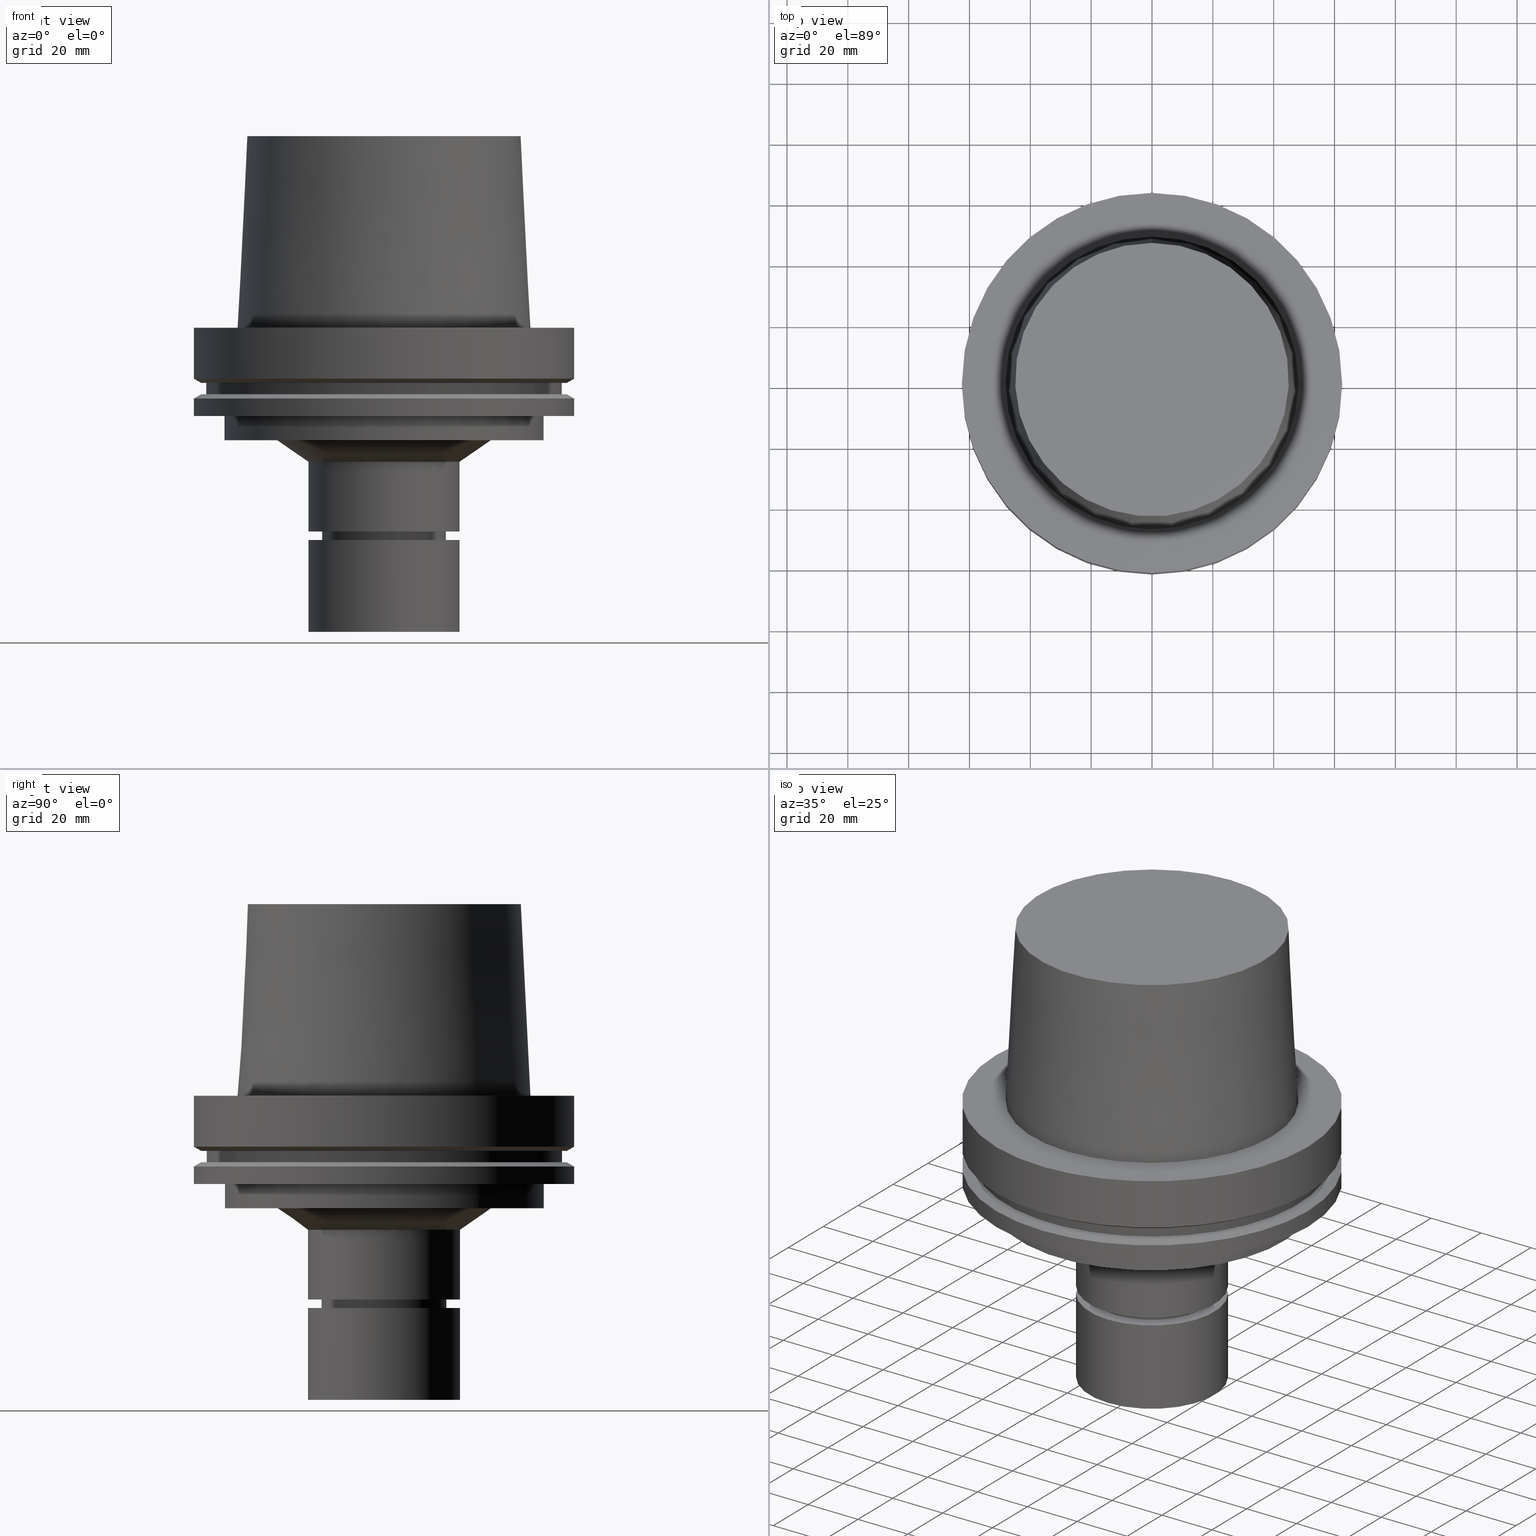
[diagram: canonical four-view strip — front | top / right | iso, engineering-drawing reading convention]
A machine part, canonical four-view strip (front | top / right | iso — engineering-drawing reading convention). The complete STEP part file that produces these views, byte-faithful:
ISO-10303-21;
HEADER;
FILE_DESCRIPTION((''),'1');
FILE_NAME('U:/Translate/02_3D_Field-HP\X2\FF71FF6FFF8CFF9F5916\X0\2013/02_Step_Field-HP\X2\FF71FF6FFF8CFF9F5916\X0\2013/HSK-A125-MEGAER32-100NL.stp','2016-06-22T04:39:14',(''),(''),'Spatial Interop R21 SP3','Kubotek KeyCreator 2011 V10.0.2 (22737)',' ');
FILE_SCHEMA(('automotive_design'));
ENDSEC;
DATA;
#1=MECHANICAL_DESIGN_GEOMETRIC_PRESENTATION_REPRESENTATION(' ',(#14,#15,#16,#17,#18,#19,#20,#21,#22,#23,#24,#25,#26,#27,#28,#29,#30,#31,#32,#33,#34,#35,#36,#37,#38,#39,#40,#41,#42,#43,#44,#45,#46,#47,#48,#49,#50,#51,#52,#53,#54,#55,#56,#57,#58,#59,#60,#61),#10);
#2=PRODUCT_DEFINITION_CONTEXT('',#62,'design');
#3=APPLICATION_PROTOCOL_DEFINITION('INTERNATIONAL STANDARD','automotive_design',1994,#62);
#4=PRODUCT_CATEGORY_RELATIONSHIP('NONE','NONE',#63,#64);
#5=SHAPE_DEFINITION_REPRESENTATION(#65,#66);
#6=PRODUCT_DEFINITION_CONTEXT('',#67,'design');
#7=APPLICATION_PROTOCOL_DEFINITION('INTERNATIONAL STANDARD','automotive_design',1994,#67);
#8=PRODUCT_CATEGORY_RELATIONSHIP('NONE','NONE',#68,#69);
#9=SHAPE_DEFINITION_REPRESENTATION(#70,#71);
#10= (GEOMETRIC_REPRESENTATION_CONTEXT(3)GLOBAL_UNCERTAINTY_ASSIGNED_CONTEXT((#74))GLOBAL_UNIT_ASSIGNED_CONTEXT((#76,#77,#78))REPRESENTATION_CONTEXT('NONE','WORKSPACE'));
#14=STYLED_ITEM('',(#80,#81),#82);
#15=STYLED_ITEM('',(#83,#84),#85);
#16=STYLED_ITEM('',(#86),#87);
#17=STYLED_ITEM('',(#88,#89),#90);
#18=STYLED_ITEM('',(#91),#92);
#19=STYLED_ITEM('',(#93),#94);
#20=STYLED_ITEM('',(#95),#96);
#21=STYLED_ITEM('',(#97,#98),#99);
#22=STYLED_ITEM('',(#100),#101);
#23=STYLED_ITEM('',(#102,#103),#104);
#24=STYLED_ITEM('',(#105,#106),#107);
#25=STYLED_ITEM('',(#108),#109);
#26=STYLED_ITEM('',(#110,#111),#112);
#27=STYLED_ITEM('',(#113,#114),#115);
#28=STYLED_ITEM('',(#116,#117),#118);
#29=STYLED_ITEM('',(#119,#120),#121);
#30=STYLED_ITEM('',(#122),#123);
#31=STYLED_ITEM('',(#124,#125),#126);
#32=STYLED_ITEM('',(#127,#128),#129);
#33=STYLED_ITEM('',(#130,#131),#132);
#34=STYLED_ITEM('',(#133,#134),#135);
#35=STYLED_ITEM('',(#136,#137),#138);
#36=STYLED_ITEM('',(#139),#140);
#37=STYLED_ITEM('',(#141),#142);
#38=STYLED_ITEM('',(#143,#144),#145);
#39=STYLED_ITEM('',(#146,#147),#148);
#40=STYLED_ITEM('',(#149,#150),#151);
#41=STYLED_ITEM('',(#152),#153);
#42=STYLED_ITEM('',(#154,#155),#156);
#43=STYLED_ITEM('',(#157),#158);
#44=STYLED_ITEM('',(#159),#160);
#45=STYLED_ITEM('',(#161,#162),#163);
#46=STYLED_ITEM('',(#164,#165),#166);
#47=STYLED_ITEM('',(#167),#168);
#48=STYLED_ITEM('',(#169,#170),#171);
#49=STYLED_ITEM('',(#172,#173),#174);
#50=STYLED_ITEM('',(#175),#176);
#51=STYLED_ITEM('',(#177),#178);
#52=STYLED_ITEM('',(#179,#180),#181);
#53=STYLED_ITEM('',(#182,#183),#184);
#54=STYLED_ITEM('',(#185),#186);
#55=STYLED_ITEM('',(#187),#188);
#56=STYLED_ITEM('',(#189),#190);
#57=STYLED_ITEM('',(#191),#192);
#58=STYLED_ITEM('',(#193),#194);
#59=STYLED_ITEM('',(#195,#196),#197);
#60=STYLED_ITEM('',(#198),#199);
#61=STYLED_ITEM('',(#200),#201);
#62=APPLICATION_CONTEXT(' ');
#63=PRODUCT_CATEGORY('part','NONE');
#64=PRODUCT_RELATED_PRODUCT_CATEGORY('detail',' ',(#202));
#65=PRODUCT_DEFINITION_SHAPE('NONE','NONE',#203);
#66=ADVANCED_BREP_SHAPE_REPRESENTATION('Unnamed[1]',(#82,#204),#10);
#67=APPLICATION_CONTEXT(' ');
#68=PRODUCT_CATEGORY('part','NONE');
#69=PRODUCT_RELATED_PRODUCT_CATEGORY('detail',' ',(#205));
#70=PRODUCT_DEFINITION_SHAPE('NONE','NONE',#206);
#71=ADVANCED_BREP_SHAPE_REPRESENTATION('Unnamed[1]',(#85,#207),#10);
#74=UNCERTAINTY_MEASURE_WITH_UNIT(LENGTH_MEASURE(1.0E-006),#76,'','');
#76= (CONVERSION_BASED_UNIT('MILLIMETRE',#210)LENGTH_UNIT()NAMED_UNIT(#213));
#77= (NAMED_UNIT(#215)PLANE_ANGLE_UNIT()SI_UNIT($,.RADIAN.));
#78= (NAMED_UNIT(#215)SOLID_ANGLE_UNIT()SI_UNIT($,.STERADIAN.));
#80=PRESENTATION_STYLE_ASSIGNMENT((#221));
#81=PRESENTATION_STYLE_ASSIGNMENT((#222));
#82=MANIFOLD_SOLID_BREP('Unnamed[1]',#223);
#83=PRESENTATION_STYLE_ASSIGNMENT((#224));
#84=PRESENTATION_STYLE_ASSIGNMENT((#225));
#85=MANIFOLD_SOLID_BREP('Unnamed[1]',#226);
#86=PRESENTATION_STYLE_ASSIGNMENT((#227));
#87=EDGE_CURVE('Unnamed[1]',#228,#228,#229,.T.);
#88=PRESENTATION_STYLE_ASSIGNMENT((#230));
#89=PRESENTATION_STYLE_ASSIGNMENT((#231));
#90=ADVANCED_FACE('Unnamed[1]',(#232,#233),#234,.T.);
#91=PRESENTATION_STYLE_ASSIGNMENT((#235));
#92=EDGE_CURVE('Unnamed[1]',#236,#236,#237,.T.);
#93=PRESENTATION_STYLE_ASSIGNMENT((#238));
#94=EDGE_CURVE('Unnamed[1]',#239,#239,#240,.T.);
#95=PRESENTATION_STYLE_ASSIGNMENT((#241));
#96=EDGE_CURVE('Unnamed[1]',#242,#242,#243,.T.);
#97=PRESENTATION_STYLE_ASSIGNMENT((#244));
#98=PRESENTATION_STYLE_ASSIGNMENT((#245));
#99=ADVANCED_FACE('Unnamed[1]',(#246,#247),#248,.T.);
#100=PRESENTATION_STYLE_ASSIGNMENT((#249));
#101=EDGE_CURVE('Unnamed[1]',#250,#250,#251,.T.);
#102=PRESENTATION_STYLE_ASSIGNMENT((#252));
#103=PRESENTATION_STYLE_ASSIGNMENT((#253));
#104=ADVANCED_FACE('Unnamed[1]',(#254),#255,.T.);
#105=PRESENTATION_STYLE_ASSIGNMENT((#256));
#106=PRESENTATION_STYLE_ASSIGNMENT((#257));
#107=ADVANCED_FACE('Unnamed[1]',(#258,#259),#260,.T.);
#108=PRESENTATION_STYLE_ASSIGNMENT((#261));
#109=EDGE_CURVE('Unnamed[1]',#262,#262,#263,.T.);
#110=PRESENTATION_STYLE_ASSIGNMENT((#264));
#111=PRESENTATION_STYLE_ASSIGNMENT((#265));
#112=ADVANCED_FACE('Unnamed[1]',(#266,#267),#268,.T.);
#113=PRESENTATION_STYLE_ASSIGNMENT((#269));
#114=PRESENTATION_STYLE_ASSIGNMENT((#270));
#115=ADVANCED_FACE('Unnamed[1]',(#271,#272),#273,.T.);
#116=PRESENTATION_STYLE_ASSIGNMENT((#274));
#117=PRESENTATION_STYLE_ASSIGNMENT((#275));
#118=ADVANCED_FACE('Unnamed[1]',(#276,#277),#278,.T.);
#119=PRESENTATION_STYLE_ASSIGNMENT((#279));
#120=PRESENTATION_STYLE_ASSIGNMENT((#280));
#121=ADVANCED_FACE('Unnamed[1]',(#281,#282),#283,.T.);
#122=PRESENTATION_STYLE_ASSIGNMENT((#284));
#123=EDGE_CURVE('Unnamed[1]',#285,#285,#286,.T.);
#124=PRESENTATION_STYLE_ASSIGNMENT((#287));
#125=PRESENTATION_STYLE_ASSIGNMENT((#288));
#126=ADVANCED_FACE('Unnamed[1]',(#289,#290),#291,.T.);
#127=PRESENTATION_STYLE_ASSIGNMENT((#292));
#128=PRESENTATION_STYLE_ASSIGNMENT((#293));
#129=ADVANCED_FACE('Unnamed[1]',(#294),#295,.T.);
#130=PRESENTATION_STYLE_ASSIGNMENT((#296));
#131=PRESENTATION_STYLE_ASSIGNMENT((#297));
#132=ADVANCED_FACE('Unnamed[1]',(#298,#299),#300,.T.);
#133=PRESENTATION_STYLE_ASSIGNMENT((#301));
#134=PRESENTATION_STYLE_ASSIGNMENT((#302));
#135=ADVANCED_FACE('Unnamed[1]',(#303,#304),#305,.T.);
#136=PRESENTATION_STYLE_ASSIGNMENT((#306));
#137=PRESENTATION_STYLE_ASSIGNMENT((#307));
#138=ADVANCED_FACE('Unnamed[1]',(#308),#309,.T.);
#139=PRESENTATION_STYLE_ASSIGNMENT((#310));
#140=EDGE_CURVE('Unnamed[1]',#311,#311,#312,.T.);
#141=PRESENTATION_STYLE_ASSIGNMENT((#313));
#142=EDGE_CURVE('Unnamed[1]',#314,#314,#315,.T.);
#143=PRESENTATION_STYLE_ASSIGNMENT((#316));
#144=PRESENTATION_STYLE_ASSIGNMENT((#317));
#145=ADVANCED_FACE('Unnamed[1]',(#318),#319,.T.);
#146=PRESENTATION_STYLE_ASSIGNMENT((#320));
#147=PRESENTATION_STYLE_ASSIGNMENT((#321));
#148=ADVANCED_FACE('Unnamed[1]',(#322,#323),#324,.T.);
#149=PRESENTATION_STYLE_ASSIGNMENT((#325));
#150=PRESENTATION_STYLE_ASSIGNMENT((#326));
#151=ADVANCED_FACE('Unnamed[1]',(#327,#328),#329,.T.);
#152=PRESENTATION_STYLE_ASSIGNMENT((#330));
#153=EDGE_CURVE('Unnamed[1]',#331,#331,#332,.T.);
#154=PRESENTATION_STYLE_ASSIGNMENT((#333));
#155=PRESENTATION_STYLE_ASSIGNMENT((#334));
#156=ADVANCED_FACE('Unnamed[1]',(#335,#336),#337,.T.);
#157=PRESENTATION_STYLE_ASSIGNMENT((#338));
#158=EDGE_CURVE('Unnamed[1]',#339,#339,#340,.T.);
#159=PRESENTATION_STYLE_ASSIGNMENT((#341));
#160=EDGE_CURVE('Unnamed[1]',#342,#342,#343,.T.);
#161=PRESENTATION_STYLE_ASSIGNMENT((#344));
#162=PRESENTATION_STYLE_ASSIGNMENT((#345));
#163=ADVANCED_FACE('Unnamed[1]',(#346,#347),#348,.T.);
#164=PRESENTATION_STYLE_ASSIGNMENT((#349));
#165=PRESENTATION_STYLE_ASSIGNMENT((#350));
#166=ADVANCED_FACE('Unnamed[1]',(#351,#352),#353,.T.);
#167=PRESENTATION_STYLE_ASSIGNMENT((#354));
#168=EDGE_CURVE('Unnamed[1]',#355,#355,#356,.T.);
#169=PRESENTATION_STYLE_ASSIGNMENT((#357));
#170=PRESENTATION_STYLE_ASSIGNMENT((#358));
#171=ADVANCED_FACE('Unnamed[1]',(#359,#360),#361,.T.);
#172=PRESENTATION_STYLE_ASSIGNMENT((#362));
#173=PRESENTATION_STYLE_ASSIGNMENT((#363));
#174=ADVANCED_FACE('Unnamed[1]',(#364,#365),#366,.T.);
#175=PRESENTATION_STYLE_ASSIGNMENT((#367));
#176=EDGE_CURVE('Unnamed[1]',#368,#368,#369,.T.);
#177=PRESENTATION_STYLE_ASSIGNMENT((#370));
#178=EDGE_CURVE('Unnamed[1]',#371,#371,#372,.T.);
#179=PRESENTATION_STYLE_ASSIGNMENT((#373));
#180=PRESENTATION_STYLE_ASSIGNMENT((#374));
#181=ADVANCED_FACE('Unnamed[1]',(#375,#376),#377,.T.);
#182=PRESENTATION_STYLE_ASSIGNMENT((#378));
#183=PRESENTATION_STYLE_ASSIGNMENT((#379));
#184=ADVANCED_FACE('Unnamed[1]',(#380,#381),#382,.T.);
#185=PRESENTATION_STYLE_ASSIGNMENT((#383));
#186=EDGE_CURVE('Unnamed[1]',#384,#384,#385,.T.);
#187=PRESENTATION_STYLE_ASSIGNMENT((#386));
#188=EDGE_CURVE('Unnamed[1]',#387,#387,#388,.T.);
#189=PRESENTATION_STYLE_ASSIGNMENT((#389));
#190=EDGE_CURVE('Unnamed[1]',#390,#390,#391,.T.);
#191=PRESENTATION_STYLE_ASSIGNMENT((#392));
#192=EDGE_CURVE('Unnamed[1]',#393,#393,#394,.T.);
#193=PRESENTATION_STYLE_ASSIGNMENT((#395));
#194=EDGE_CURVE('Unnamed[1]',#396,#396,#397,.T.);
#195=PRESENTATION_STYLE_ASSIGNMENT((#398));
#196=PRESENTATION_STYLE_ASSIGNMENT((#399));
#197=ADVANCED_FACE('Unnamed[1]',(#400,#401),#402,.T.);
#198=PRESENTATION_STYLE_ASSIGNMENT((#403));
#199=EDGE_CURVE('Unnamed[1]',#404,#404,#405,.T.);
#200=PRESENTATION_STYLE_ASSIGNMENT((#406));
#201=EDGE_CURVE('Unnamed[1]',#407,#407,#408,.T.);
#202=PRODUCT('Unnamed[1]','Unnamed[1]','PART-Unnamed[1]-DESC',(#409));
#203=PRODUCT_DEFINITION('NONE','NONE',#410,#2);
#204=AXIS2_PLACEMENT_3D('',#411,#412,#413);
#205=PRODUCT('Unnamed[1]','Unnamed[1]','PART-Unnamed[1]-DESC',(#414));
#206=PRODUCT_DEFINITION('NONE','NONE',#415,#6);
#207=AXIS2_PLACEMENT_3D('',#416,#417,#418);
#210=LENGTH_MEASURE_WITH_UNIT(LENGTH_MEASURE(1.0),#419);
#213=DIMENSIONAL_EXPONENTS(1.0,0.0,0.0,0.0,0.0,0.0,0.0);
#215=DIMENSIONAL_EXPONENTS(0.0,0.0,0.0,0.0,0.0,0.0,0.0);
#221=SURFACE_STYLE_USAGE(.BOTH.,#420);
#222=CURVE_STYLE('',#421,POSITIVE_LENGTH_MEASURE(1000.0),#422);
#223=CLOSED_SHELL('',(#129,#132,#135,#126,#184,#171,#118,#148,#151,#99,#197,#115,#90,#174,#107,#112,#121,#156,#163,#166,#138));
#224=SURFACE_STYLE_USAGE(.BOTH.,#423);
#225=CURVE_STYLE('',#424,POSITIVE_LENGTH_MEASURE(1000.0),#425);
#226=CLOSED_SHELL('',(#145,#104,#181));
#227=CURVE_STYLE('',#426,POSITIVE_LENGTH_MEASURE(1000.0),#427);
#228=VERTEX_POINT('',#428);
#229=CIRCLE('',#429,44.977939879759);
#230=SURFACE_STYLE_USAGE(.BOTH.,#430);
#231=CURVE_STYLE('',#431,POSITIVE_LENGTH_MEASURE(1000.0),#432);
#232=FACE_BOUND('',#433,.T.);
#233=FACE_OUTER_BOUND('',#434,.T.);
#234=PLANE('',#435);
#235=CURVE_STYLE('',#436,POSITIVE_LENGTH_MEASURE(1000.0),#437);
#236=VERTEX_POINT('',#438);
#237=CIRCLE('',#439,20.0000000000001);
#238=CURVE_STYLE('',#440,POSITIVE_LENGTH_MEASURE(1000.0),#441);
#239=VERTEX_POINT('',#442);
#240=CIRCLE('',#443,62.5000000000003);
#241=CURVE_STYLE('',#444,POSITIVE_LENGTH_MEASURE(1000.0),#445);
#242=VERTEX_POINT('',#446);
#243=CIRCLE('',#447,20.4999999999912);
#244=SURFACE_STYLE_USAGE(.BOTH.,#448);
#245=CURVE_STYLE('',#449,POSITIVE_LENGTH_MEASURE(1000.0),#450);
#246=FACE_BOUND('',#451,.T.);
#247=FACE_BOUND('',#452,.T.);
#248=CYLINDRICAL_SURFACE('',#453,62.5);
#249=CURVE_STYLE('',#454,POSITIVE_LENGTH_MEASURE(1000.0),#455);
#250=VERTEX_POINT('',#456);
#251=CIRCLE('',#457,60.122595264194);
#252=SURFACE_STYLE_USAGE(.BOTH.,#458);
#253=CURVE_STYLE('',#459,POSITIVE_LENGTH_MEASURE(1000.0),#460);
#254=FACE_OUTER_BOUND('',#461,.T.);
#255=PLANE('',#462);
#256=SURFACE_STYLE_USAGE(.BOTH.,#463);
#257=CURVE_STYLE('',#464,POSITIVE_LENGTH_MEASURE(1000.0),#465);
#258=FACE_BOUND('',#466,.T.);
#259=FACE_BOUND('',#467,.T.);
#260=CYLINDRICAL_SURFACE('',#468,24.9999999999999);
#261=CURVE_STYLE('',#469,POSITIVE_LENGTH_MEASURE(1000.0),#470);
#262=VERTEX_POINT('',#471);
#263=CIRCLE('',#472,25.0000000000001);
#264=SURFACE_STYLE_USAGE(.BOTH.,#473);
#265=CURVE_STYLE('',#474,POSITIVE_LENGTH_MEASURE(1000.0),#475);
#266=FACE_BOUND('',#476,.T.);
#267=FACE_OUTER_BOUND('',#477,.T.);
#268=PLANE('',#478);
#269=SURFACE_STYLE_USAGE(.BOTH.,#479);
#270=CURVE_STYLE('',#480,POSITIVE_LENGTH_MEASURE(1000.0),#481);
#271=FACE_BOUND('',#482,.T.);
#272=FACE_BOUND('',#483,.T.);
#273=CYLINDRICAL_SURFACE('',#484,52.5);
#274=SURFACE_STYLE_USAGE(.BOTH.,#485);
#275=CURVE_STYLE('',#486,POSITIVE_LENGTH_MEASURE(1000.0),#487);
#276=FACE_BOUND('',#488,.T.);
#277=FACE_BOUND('',#489,.T.);
#278=CYLINDRICAL_SURFACE('',#490,58.5);
#279=SURFACE_STYLE_USAGE(.BOTH.,#491);
#280=CURVE_STYLE('',#492,POSITIVE_LENGTH_MEASURE(1000.0),#493);
#281=FACE_BOUND('',#494,.T.);
#282=FACE_BOUND('',#495,.T.);
#283=CYLINDRICAL_SURFACE('',#496,20.4999999999962);
#284=CURVE_STYLE('',#497,POSITIVE_LENGTH_MEASURE(1000.0),#498);
#285=VERTEX_POINT('',#499);
#286=CIRCLE('',#500,52.4999999999999);
#287=SURFACE_STYLE_USAGE(.BOTH.,#501);
#288=CURVE_STYLE('',#502,POSITIVE_LENGTH_MEASURE(1000.0),#503);
#289=FACE_BOUND('',#504,.T.);
#290=FACE_BOUND('',#505,.T.);
#291=CYLINDRICAL_SURFACE('',#506,62.5000000000002);
#292=SURFACE_STYLE_USAGE(.BOTH.,#507);
#293=CURVE_STYLE('',#508,POSITIVE_LENGTH_MEASURE(1000.0),#509);
#294=FACE_OUTER_BOUND('',#510,.T.);
#295=PLANE('',#511);
#296=SURFACE_STYLE_USAGE(.BOTH.,#512);
#297=CURVE_STYLE('',#513,POSITIVE_LENGTH_MEASURE(1000.0),#514);
#298=FACE_BOUND('',#515,.T.);
#299=FACE_BOUND('',#516,.T.);
#300=CONICAL_SURFACE('',#517,46.5560961923844,0.0500583457465986);
#301=SURFACE_STYLE_USAGE(.BOTH.,#518);
#302=CURVE_STYLE('',#519,POSITIVE_LENGTH_MEASURE(1000.0),#520);
#303=FACE_OUTER_BOUND('',#521,.T.);
#304=FACE_BOUND('',#522,.T.);
#305=PLANE('',#523);
#306=SURFACE_STYLE_USAGE(.BOTH.,#524);
#307=CURVE_STYLE('',#525,POSITIVE_LENGTH_MEASURE(1000.0),#526);
#308=FACE_OUTER_BOUND('',#527,.T.);
#309=PLANE('',#528);
#310=CURVE_STYLE('',#529,POSITIVE_LENGTH_MEASURE(1000.0),#530);
#311=VERTEX_POINT('',#531);
#312=CIRCLE('',#532,52.5000000000001);
#313=CURVE_STYLE('',#533,POSITIVE_LENGTH_MEASURE(1000.0),#534);
#314=VERTEX_POINT('',#535);
#315=CIRCLE('',#536,62.5);
#316=SURFACE_STYLE_USAGE(.BOTH.,#537);
#317=CURVE_STYLE('',#538,POSITIVE_LENGTH_MEASURE(1000.0),#539);
#318=FACE_OUTER_BOUND('',#540,.T.);
#319=PLANE('',#541);
#320=SURFACE_STYLE_USAGE(.BOTH.,#542);
#321=CURVE_STYLE('',#543,POSITIVE_LENGTH_MEASURE(1000.0),#544);
#322=FACE_OUTER_BOUND('',#545,.T.);
#323=FACE_BOUND('',#546,.T.);
#324=PLANE('',#547);
#325=SURFACE_STYLE_USAGE(.BOTH.,#548);
#326=CURVE_STYLE('',#549,POSITIVE_LENGTH_MEASURE(1000.0),#550);
#327=FACE_BOUND('',#551,.T.);
#328=FACE_BOUND('',#552,.T.);
#329=CONICAL_SURFACE('',#553,61.311297632097,1.04719755119646);
#330=CURVE_STYLE('',#554,POSITIVE_LENGTH_MEASURE(1000.0),#555);
#331=VERTEX_POINT('',#556);
#332=CIRCLE('',#557,48.1342525050098);
#333=SURFACE_STYLE_USAGE(.BOTH.,#558);
#334=CURVE_STYLE('',#559,POSITIVE_LENGTH_MEASURE(1000.0),#560);
#335=FACE_BOUND('',#561,.T.);
#336=FACE_BOUND('',#562,.T.);
#337=CONICAL_SURFACE('',#563,20.2500000000007,0.766162649695663);
#338=CURVE_STYLE('',#564,POSITIVE_LENGTH_MEASURE(1000.0),#565);
#339=VERTEX_POINT('',#566);
#340=CIRCLE('',#567,58.5000000000001);
#341=CURVE_STYLE('',#568,POSITIVE_LENGTH_MEASURE(1000.0),#569);
#342=VERTEX_POINT('',#570);
#343=CIRCLE('',#571,35.1435726714544);
#344=SURFACE_STYLE_USAGE(.BOTH.,#572);
#345=CURVE_STYLE('',#573,POSITIVE_LENGTH_MEASURE(1000.0),#574);
#346=FACE_BOUND('',#575,.T.);
#347=FACE_BOUND('',#576,.T.);
#348=CYLINDRICAL_SURFACE('',#577,20.0000000000001);
#349=SURFACE_STYLE_USAGE(.BOTH.,#578);
#350=CURVE_STYLE('',#579,POSITIVE_LENGTH_MEASURE(1000.0),#580);
#351=FACE_BOUND('',#581,.T.);
#352=FACE_BOUND('',#582,.T.);
#353=CONICAL_SURFACE('',#583,19.45,0.523598775598221);
#354=CURVE_STYLE('',#584,POSITIVE_LENGTH_MEASURE(1000.0),#585);
#355=VERTEX_POINT('',#586);
#356=CIRCLE('',#587,58.4999999999998);
#357=SURFACE_STYLE_USAGE(.BOTH.,#588);
#358=CURVE_STYLE('',#589,POSITIVE_LENGTH_MEASURE(1000.0),#590);
#359=FACE_BOUND('',#591,.T.);
#360=FACE_OUTER_BOUND('',#592,.T.);
#361=PLANE('',#593);
#362=SURFACE_STYLE_USAGE(.BOTH.,#594);
#363=CURVE_STYLE('',#595,POSITIVE_LENGTH_MEASURE(1000.0),#596);
#364=FACE_BOUND('',#597,.T.);
#365=FACE_BOUND('',#598,.T.);
#366=CONICAL_SURFACE('',#599,30.071786335727,0.962446965226447);
#367=CURVE_STYLE('',#600,POSITIVE_LENGTH_MEASURE(1000.0),#601);
#368=VERTEX_POINT('',#602);
#369=CIRCLE('',#603,24.9999999999996);
#370=CURVE_STYLE('',#604,POSITIVE_LENGTH_MEASURE(1000.0),#605);
#371=VERTEX_POINT('',#606);
#372=CIRCLE('',#607,20.5000000000013);
#373=SURFACE_STYLE_USAGE(.BOTH.,#608);
#374=CURVE_STYLE('',#609,POSITIVE_LENGTH_MEASURE(1000.0),#610);
#375=FACE_BOUND('',#611,.T.);
#376=FACE_BOUND('',#612,.T.);
#377=CYLINDRICAL_SURFACE('',#613,25.0000000000001);
#378=SURFACE_STYLE_USAGE(.BOTH.,#614);
#379=CURVE_STYLE('',#615,POSITIVE_LENGTH_MEASURE(1000.0),#616);
#380=FACE_BOUND('',#617,.T.);
#381=FACE_BOUND('',#618,.T.);
#382=CONICAL_SURFACE('',#619,61.3112976320956,1.04719755119668);
#383=CURVE_STYLE('',#620,POSITIVE_LENGTH_MEASURE(1000.0),#621);
#384=VERTEX_POINT('',#622);
#385=CIRCLE('',#623,62.5000000000001);
#386=CURVE_STYLE('',#624,POSITIVE_LENGTH_MEASURE(1000.0),#625);
#387=VERTEX_POINT('',#626);
#388=CIRCLE('',#627,20.0000000000002);
#389=CURVE_STYLE('',#628,POSITIVE_LENGTH_MEASURE(1000.0),#629);
#390=VERTEX_POINT('',#630);
#391=CIRCLE('',#631,18.8999999999998);
#392=CURVE_STYLE('',#632,POSITIVE_LENGTH_MEASURE(1000.0),#633);
#393=VERTEX_POINT('',#634);
#394=CIRCLE('',#635,25.0000000000001);
#395=CURVE_STYLE('',#636,POSITIVE_LENGTH_MEASURE(1000.0),#637);
#396=VERTEX_POINT('',#638);
#397=CIRCLE('',#639,62.5);
#398=SURFACE_STYLE_USAGE(.BOTH.,#640);
#399=CURVE_STYLE('',#641,POSITIVE_LENGTH_MEASURE(1000.0),#642);
#400=FACE_BOUND('',#643,.T.);
#401=FACE_OUTER_BOUND('',#644,.T.);
#402=PLANE('',#645);
#403=CURVE_STYLE('',#646,POSITIVE_LENGTH_MEASURE(1000.0),#647);
#404=VERTEX_POINT('',#648);
#405=CIRCLE('',#649,60.1225952641912);
#406=CURVE_STYLE('',#650,POSITIVE_LENGTH_MEASURE(1000.0),#651);
#407=VERTEX_POINT('',#652);
#408=CIRCLE('',#653,25.0000000000002);
#409=PRODUCT_CONTEXT('',#62,'mechanical');
#410=PRODUCT_DEFINITION_FORMATION_WITH_SPECIFIED_SOURCE(' ','NONE',#202,.NOT_KNOWN.);
#411=CARTESIAN_POINT('',(0.0,0.0,0.0));
#412=DIRECTION('',(0.0,0.0,1.0));
#413=DIRECTION('',(1.0,0.0,0.0));
#414=PRODUCT_CONTEXT('',#67,'mechanical');
#415=PRODUCT_DEFINITION_FORMATION_WITH_SPECIFIED_SOURCE(' ','NONE',#205,.NOT_KNOWN.);
#416=CARTESIAN_POINT('',(0.0,0.0,0.0));
#417=DIRECTION('',(0.0,0.0,1.0));
#418=DIRECTION('',(1.0,0.0,0.0));
#419= (NAMED_UNIT(#213)LENGTH_UNIT()SI_UNIT(.MILLI.,.METRE.));
#420=SURFACE_SIDE_STYLE('',(#655));
#421=DRAUGHTING_PRE_DEFINED_CURVE_FONT('continuous');
#422=COLOUR_RGB('',0.0,1.0,0.0);
#423=SURFACE_SIDE_STYLE('',(#656));
#424=DRAUGHTING_PRE_DEFINED_CURVE_FONT('continuous');
#425=COLOUR_RGB('',0.0,1.0,0.0);
#426=DRAUGHTING_PRE_DEFINED_CURVE_FONT('continuous');
#427=COLOUR_RGB('',0.0,1.0,0.0);
#428=CARTESIAN_POINT('',(-3.85763741731416E-015,44.9779398797591,62.9999999999999));
#429=AXIS2_PLACEMENT_3D('',#657,#658,#659);
#430=SURFACE_SIDE_STYLE('',(#660));
#431=DRAUGHTING_PRE_DEFINED_CURVE_FONT('continuous');
#432=COLOUR_RGB('',0.0,1.0,0.0);
#433=EDGE_LOOP('',(#661));
#434=EDGE_LOOP('',(#662));
#435=AXIS2_PLACEMENT_3D('',#663,#664,#665);
#436=DRAUGHTING_PRE_DEFINED_CURVE_FONT('continuous');
#437=COLOUR_RGB('',0.0,1.0,0.0);
#438=CARTESIAN_POINT('',(4.51472763839222E-015,20.0,-73.7310976770699));
#439=AXIS2_PLACEMENT_3D('',#666,#667,#668);
#440=DRAUGHTING_PRE_DEFINED_CURVE_FONT('continuous');
#441=COLOUR_RGB('',0.0,1.0,0.0);
#442=CARTESIAN_POINT('',(-5.58935713239973E-030,62.5000000000002,8.63540424946709E-014));
#443=AXIS2_PLACEMENT_3D('',#669,#670,#671);
#444=DRAUGHTING_PRE_DEFINED_CURVE_FONT('continuous');
#445=COLOUR_RGB('',0.0,1.0,0.0);
#446=CARTESIAN_POINT('',(4.10257642548696E-015,20.4999999999911,-67.0001575694042));
#447=AXIS2_PLACEMENT_3D('',#672,#673,#674);
#448=SURFACE_SIDE_STYLE('',(#675));
#449=DRAUGHTING_PRE_DEFINED_CURVE_FONT('continuous');
#450=COLOUR_RGB('',0.0,1.0,0.0);
#451=EDGE_LOOP('',(#676));
#452=EDGE_LOOP('',(#677));
#453=AXIS2_PLACEMENT_3D('',#678,#679,#680);
#454=DRAUGHTING_PRE_DEFINED_CURVE_FONT('continuous');
#455=COLOUR_RGB('',0.0,1.0,0.0);
#456=CARTESIAN_POINT('',(1.33945743656747E-015,60.122595264194,-21.8750000000009));
#457=AXIS2_PLACEMENT_3D('',#681,#682,#683);
#458=SURFACE_SIDE_STYLE('',(#684));
#459=DRAUGHTING_PRE_DEFINED_CURVE_FONT('continuous');
#460=COLOUR_RGB('',0.0,1.0,0.0);
#461=EDGE_LOOP('',(#685));
#462=AXIS2_PLACEMENT_3D('',#686,#687,#688);
#463=SURFACE_SIDE_STYLE('',(#689));
#464=DRAUGHTING_PRE_DEFINED_CURVE_FONT('continuous');
#465=COLOUR_RGB('',0.0,1.0,0.0);
#466=EDGE_LOOP('',(#690));
#467=EDGE_LOOP('',(#691));
#468=AXIS2_PLACEMENT_3D('',#692,#693,#694);
#469=DRAUGHTING_PRE_DEFINED_CURVE_FONT('continuous');
#470=COLOUR_RGB('',0.0,1.0,0.0);
#471=CARTESIAN_POINT('',(6.12323399573677E-015,25.0,-100.0));
#472=AXIS2_PLACEMENT_3D('',#695,#696,#697);
#473=SURFACE_SIDE_STYLE('',(#698));
#474=DRAUGHTING_PRE_DEFINED_CURVE_FONT('continuous');
#475=COLOUR_RGB('',0.0,1.0,0.0);
#476=EDGE_LOOP('',(#699));
#477=EDGE_LOOP('',(#700));
#478=AXIS2_PLACEMENT_3D('',#701,#702,#703);
#479=SURFACE_SIDE_STYLE('',(#704));
#480=DRAUGHTING_PRE_DEFINED_CURVE_FONT('continuous');
#481=COLOUR_RGB('',0.0,1.0,0.0);
#482=EDGE_LOOP('',(#705));
#483=EDGE_LOOP('',(#706));
#484=AXIS2_PLACEMENT_3D('',#707,#708,#709);
#485=SURFACE_SIDE_STYLE('',(#710));
#486=DRAUGHTING_PRE_DEFINED_CURVE_FONT('continuous');
#487=COLOUR_RGB('',0.0,1.0,0.0);
#488=EDGE_LOOP('',(#711));
#489=EDGE_LOOP('',(#712));
#490=AXIS2_PLACEMENT_3D('',#713,#714,#715);
#491=SURFACE_SIDE_STYLE('',(#716));
#492=DRAUGHTING_PRE_DEFINED_CURVE_FONT('continuous');
#493=COLOUR_RGB('',0.0,1.0,0.0);
#494=EDGE_LOOP('',(#717));
#495=EDGE_LOOP('',(#718));
#496=AXIS2_PLACEMENT_3D('',#719,#720,#721);
#497=DRAUGHTING_PRE_DEFINED_CURVE_FONT('continuous');
#498=COLOUR_RGB('',0.0,1.0,0.0);
#499=CARTESIAN_POINT('',(2.26559657842261E-015,52.4999999999999,-37.0000000000001));
#500=AXIS2_PLACEMENT_3D('',#722,#723,#724);
#501=SURFACE_SIDE_STYLE('',(#725));
#502=DRAUGHTING_PRE_DEFINED_CURVE_FONT('continuous');
#503=COLOUR_RGB('',0.0,1.0,0.0);
#504=EDGE_LOOP('',(#726));
#505=EDGE_LOOP('',(#727));
#506=AXIS2_PLACEMENT_3D('',#728,#729,#730);
#507=SURFACE_SIDE_STYLE('',(#731));
#508=DRAUGHTING_PRE_DEFINED_CURVE_FONT('continuous');
#509=COLOUR_RGB('',0.0,1.0,0.0);
#510=EDGE_LOOP('',(#732));
#511=AXIS2_PLACEMENT_3D('',#733,#734,#735);
#512=SURFACE_SIDE_STYLE('',(#736));
#513=DRAUGHTING_PRE_DEFINED_CURVE_FONT('continuous');
#514=COLOUR_RGB('',0.0,1.0,0.0);
#515=EDGE_LOOP('',(#737));
#516=EDGE_LOOP('',(#738));
#517=AXIS2_PLACEMENT_3D('',#739,#740,#741);
#518=SURFACE_SIDE_STYLE('',(#742));
#519=DRAUGHTING_PRE_DEFINED_CURVE_FONT('continuous');
#520=COLOUR_RGB('',0.0,1.0,0.0);
#521=EDGE_LOOP('',(#743));
#522=EDGE_LOOP('',(#744));
#523=AXIS2_PLACEMENT_3D('',#745,#746,#747);
#524=SURFACE_SIDE_STYLE('',(#748));
#525=DRAUGHTING_PRE_DEFINED_CURVE_FONT('continuous');
#526=COLOUR_RGB('',0.0,1.0,0.0);
#527=EDGE_LOOP('',(#749));
#528=AXIS2_PLACEMENT_3D('',#750,#751,#752);
#529=DRAUGHTING_PRE_DEFINED_CURVE_FONT('continuous');
#530=COLOUR_RGB('',0.0,1.0,0.0);
#531=CARTESIAN_POINT('',(1.77573785876367E-015,52.5,-29.0000000000001));
#532=AXIS2_PLACEMENT_3D('',#753,#754,#755);
#533=DRAUGHTING_PRE_DEFINED_CURVE_FONT('continuous');
#534=COLOUR_RGB('',0.0,1.0,0.0);
#535=CARTESIAN_POINT('',(1.77573785876366E-015,62.5,-29.0));
#536=AXIS2_PLACEMENT_3D('',#756,#757,#758);
#537=SURFACE_SIDE_STYLE('',(#759));
#538=DRAUGHTING_PRE_DEFINED_CURVE_FONT('continuous');
#539=COLOUR_RGB('',0.0,1.0,0.0);
#540=EDGE_LOOP('',(#760));
#541=AXIS2_PLACEMENT_3D('',#761,#762,#763);
#542=SURFACE_SIDE_STYLE('',(#764));
#543=DRAUGHTING_PRE_DEFINED_CURVE_FONT('continuous');
#544=COLOUR_RGB('',0.0,1.0,0.0);
#545=EDGE_LOOP('',(#765));
#546=EDGE_LOOP('',(#766));
#547=AXIS2_PLACEMENT_3D('',#767,#768,#769);
#548=SURFACE_SIDE_STYLE('',(#770));
#549=DRAUGHTING_PRE_DEFINED_CURVE_FONT('continuous');
#550=COLOUR_RGB('',0.0,1.0,0.0);
#551=EDGE_LOOP('',(#771));
#552=EDGE_LOOP('',(#772));
#553=AXIS2_PLACEMENT_3D('',#773,#774,#775);
#554=DRAUGHTING_PRE_DEFINED_CURVE_FONT('continuous');
#555=COLOUR_RGB('',0.0,1.0,0.0);
#556=CARTESIAN_POINT('',(3.88158335277612E-029,48.1342525050097,-6.37705254174039E-013));
#557=AXIS2_PLACEMENT_3D('',#776,#777,#778);
#558=SURFACE_SIDE_STYLE('',(#779));
#559=DRAUGHTING_PRE_DEFINED_CURVE_FONT('continuous');
#560=COLOUR_RGB('',0.0,1.0,0.0);
#561=EDGE_LOOP('',(#780));
#562=EDGE_LOOP('',(#781));
#563=AXIS2_PLACEMENT_3D('',#782,#783,#784);
#564=DRAUGHTING_PRE_DEFINED_CURVE_FONT('continuous');
#565=COLOUR_RGB('',0.0,1.0,0.0);
#566=CARTESIAN_POINT('',(1.10983616172739E-015,58.5,-18.1250000000017));
#567=AXIS2_PLACEMENT_3D('',#785,#786,#787);
#568=DRAUGHTING_PRE_DEFINED_CURVE_FONT('continuous');
#569=COLOUR_RGB('',0.0,1.0,0.0);
#570=CARTESIAN_POINT('',(2.26559657842261E-015,35.1435726714544,-37.0000000000001));
#571=AXIS2_PLACEMENT_3D('',#788,#789,#790);
#572=SURFACE_SIDE_STYLE('',(#791));
#573=DRAUGHTING_PRE_DEFINED_CURVE_FONT('continuous');
#574=COLOUR_RGB('',0.0,1.0,0.0);
#575=EDGE_LOOP('',(#792));
#576=EDGE_LOOP('',(#793));
#577=AXIS2_PLACEMENT_3D('',#794,#795,#796);
#578=SURFACE_SIDE_STYLE('',(#797));
#579=DRAUGHTING_PRE_DEFINED_CURVE_FONT('continuous');
#580=COLOUR_RGB('',0.0,1.0,0.0);
#581=EDGE_LOOP('',(#798));
#582=EDGE_LOOP('',(#799));
#583=AXIS2_PLACEMENT_3D('',#800,#801,#802);
#584=DRAUGHTING_PRE_DEFINED_CURVE_FONT('continuous');
#585=COLOUR_RGB('',0.0,1.0,0.0);
#586=CARTESIAN_POINT('',(1.33945743656732E-015,58.4999999999998,-21.8749999999984));
#587=AXIS2_PLACEMENT_3D('',#803,#804,#805);
#588=SURFACE_SIDE_STYLE('',(#806));
#589=DRAUGHTING_PRE_DEFINED_CURVE_FONT('continuous');
#590=COLOUR_RGB('',0.0,1.0,0.0);
#591=EDGE_LOOP('',(#807));
#592=EDGE_LOOP('',(#808));
#593=AXIS2_PLACEMENT_3D('',#809,#810,#811);
#594=SURFACE_SIDE_STYLE('',(#812));
#595=DRAUGHTING_PRE_DEFINED_CURVE_FONT('continuous');
#596=COLOUR_RGB('',0.0,1.0,0.0);
#597=EDGE_LOOP('',(#813));
#598=EDGE_LOOP('',(#814));
#599=AXIS2_PLACEMENT_3D('',#815,#816,#817);
#600=DRAUGHTING_PRE_DEFINED_CURVE_FONT('continuous');
#601=COLOUR_RGB('',0.0,1.0,0.0);
#602=CARTESIAN_POINT('',(2.6981810574591E-015,24.9999999999995,-44.0646406676224));
#603=AXIS2_PLACEMENT_3D('',#818,#819,#820);
#604=DRAUGHTING_PRE_DEFINED_CURVE_FONT('continuous');
#605=COLOUR_RGB('',0.0,1.0,0.0);
#606=CARTESIAN_POINT('',(4.48291038123052E-015,20.5000000000012,-73.2114824348));
#607=AXIS2_PLACEMENT_3D('',#821,#822,#823);
#608=SURFACE_SIDE_STYLE('',(#824));
#609=DRAUGHTING_PRE_DEFINED_CURVE_FONT('continuous');
#610=COLOUR_RGB('',0.0,1.0,0.0);
#611=EDGE_LOOP('',(#825));
#612=EDGE_LOOP('',(#826));
#613=AXIS2_PLACEMENT_3D('',#827,#828,#829);
#614=SURFACE_SIDE_STYLE('',(#830));
#615=DRAUGHTING_PRE_DEFINED_CURVE_FONT('continuous');
#616=COLOUR_RGB('',0.0,1.0,0.0);
#617=EDGE_LOOP('',(#831));
#618=EDGE_LOOP('',(#832));
#619=AXIS2_PLACEMENT_3D('',#833,#834,#835);
#620=DRAUGHTING_PRE_DEFINED_CURVE_FONT('continuous');
#621=COLOUR_RGB('',0.0,1.0,0.0);
#622=CARTESIAN_POINT('',(1.02578894188643E-015,62.5,-16.7524047358084));
#623=AXIS2_PLACEMENT_3D('',#836,#837,#838);
#624=DRAUGHTING_PRE_DEFINED_CURVE_FONT('continuous');
#625=COLOUR_RGB('',0.0,1.0,0.0);
#626=CARTESIAN_POINT('',(5.33301497994593E-015,20.0000000000001,-87.0947441116734));
#627=AXIS2_PLACEMENT_3D('',#839,#840,#841);
#628=DRAUGHTING_PRE_DEFINED_CURVE_FONT('continuous');
#629=COLOUR_RGB('',0.0,1.0,0.0);
#630=CARTESIAN_POINT('',(5.44967825620573E-015,18.8999999999997,-89.0000000000001));
#631=AXIS2_PLACEMENT_3D('',#842,#843,#844);
#632=DRAUGHTING_PRE_DEFINED_CURVE_FONT('continuous');
#633=COLOUR_RGB('',0.0,1.0,0.0);
#634=CARTESIAN_POINT('',(4.27401732902426E-015,25.0,-69.8));
#635=AXIS2_PLACEMENT_3D('',#845,#846,#847);
#636=DRAUGHTING_PRE_DEFINED_CURVE_FONT('continuous');
#637=COLOUR_RGB('',0.0,1.0,0.0);
#638=CARTESIAN_POINT('',(1.42350465640827E-015,62.5,-23.2475952641916));
#639=AXIS2_PLACEMENT_3D('',#848,#849,#850);
#640=SURFACE_SIDE_STYLE('',(#851));
#641=DRAUGHTING_PRE_DEFINED_CURVE_FONT('continuous');
#642=COLOUR_RGB('',0.0,1.0,0.0);
#643=EDGE_LOOP('',(#852));
#644=EDGE_LOOP('',(#853));
#645=AXIS2_PLACEMENT_3D('',#854,#855,#856);
#646=DRAUGHTING_PRE_DEFINED_CURVE_FONT('continuous');
#647=COLOUR_RGB('',0.0,1.0,0.0);
#648=CARTESIAN_POINT('',(1.10983616172729E-015,60.1225952641912,-18.1250000000001));
#649=AXIS2_PLACEMENT_3D('',#857,#858,#859);
#650=DRAUGHTING_PRE_DEFINED_CURVE_FONT('continuous');
#651=COLOUR_RGB('',0.0,1.0,0.0);
#652=CARTESIAN_POINT('',(4.10257642548693E-015,25.0000000000001,-67.0001575694037));
#653=AXIS2_PLACEMENT_3D('',#860,#861,#862);
#655=SURFACE_STYLE_FILL_AREA(#863);
#656=SURFACE_STYLE_FILL_AREA(#864);
#657=CARTESIAN_POINT('',(-3.85763741731416E-015,4.90847251653719E-014,63.0));
#658=DIRECTION('',(6.12323399573677E-017,-1.01046214935355E-015,-1.0));
#659=DIRECTION('',(5.70458091124975E-032,1.0,-1.01046214935355E-015));
#660=SURFACE_STYLE_FILL_AREA(#865);
#661=ORIENTED_EDGE('',*,*,#160,.F.);
#662=ORIENTED_EDGE('',*,*,#123,.T.);
#663=CARTESIAN_POINT('',(2.26559657842261E-015,43.8217863357271,-37.0000000000001));
#664=DIRECTION('',(6.12323399573677E-017,1.22464679914735E-016,-1.0));
#665=DIRECTION('',(-1.23259516440783E-032,1.0,1.22464679914735E-016));
#666=CARTESIAN_POINT('',(4.51472763839222E-015,-8.90768736768715E-014,-73.7310976770699));
#667=DIRECTION('',(6.12323399573677E-017,-1.01046214935352E-015,-1.0));
#668=DIRECTION('',(5.70458091125006E-032,1.0,-1.01046214935353E-015));
#669=CARTESIAN_POINT('',(-9.57180275706611E-030,-1.45743902439021E-014,1.56319401867222E-013));
#670=DIRECTION('',(6.12323399573677E-017,-1.01046214935361E-015,-1.0));
#671=DIRECTION('',(5.7045809112503E-032,1.0,-1.01046214935361E-015));
#672=CARTESIAN_POINT('',(4.10257642548696E-015,-8.22755134685095E-014,-67.0001575694042));
#673=DIRECTION('',(6.12323399573677E-017,-1.01046214935359E-015,-1.0));
#674=DIRECTION('',(5.70458091125059E-032,1.0,-1.01046214935359E-015));
#675=SURFACE_STYLE_FILL_AREA(#866);
#676=ORIENTED_EDGE('',*,*,#142,.F.);
#677=ORIENTED_EDGE('',*,*,#194,.T.);
#678=CARTESIAN_POINT('',(1.59962125758596E-015,-4.09714989485071E-014,-26.1237976320957));
#679=DIRECTION('',(6.12323399573677E-017,-1.01046214935351E-015,-1.0));
#680=DIRECTION('',(5.70458091124975E-032,1.0,-1.01046214935351E-015));
#681=CARTESIAN_POINT('',(1.33945743656747E-015,-3.66782497610122E-014,-21.8750000000008));
#682=DIRECTION('',(6.12323399573677E-017,-1.01046214935359E-015,-1.0));
#683=DIRECTION('',(5.70458091124989E-032,1.0,-1.01046214935359E-015));
#684=SURFACE_STYLE_FILL_AREA(#867);
#685=ORIENTED_EDGE('',*,*,#192,.F.);
#686=CARTESIAN_POINT('',(4.27401732902426E-015,12.5,-69.8));
#687=DIRECTION('',(-6.12323399573677E-017,1.01440369730142E-015,1.0));
#688=DIRECTION('',(-5.72871593164023E-032,-1.0,1.01440369730142E-015));
#689=SURFACE_STYLE_FILL_AREA(#868);
#690=ORIENTED_EDGE('',*,*,#201,.F.);
#691=ORIENTED_EDGE('',*,*,#176,.T.);
#692=CARTESIAN_POINT('',(3.40037874147301E-015,-7.06877776159546E-014,-55.532399118513));
#693=DIRECTION('',(6.12323399573677E-017,-1.01046214935362E-015,-1.0));
#694=DIRECTION('',(5.70458091125021E-032,1.0,-1.01046214935362E-015));
#695=CARTESIAN_POINT('',(6.12323399573676E-015,-1.15620605179258E-013,-100.0));
#696=DIRECTION('',(6.12323399573677E-017,-1.01046214935356E-015,-1.0));
#697=DIRECTION('',(5.70458091125005E-032,1.0,-1.01046214935356E-015));
#698=SURFACE_STYLE_FILL_AREA(#869);
#699=ORIENTED_EDGE('',*,*,#96,.F.);
#700=ORIENTED_EDGE('',*,*,#201,.T.);
#701=CARTESIAN_POINT('',(4.10257642548694E-015,22.7499999999956,-67.000157569404));
#702=DIRECTION('',(6.12323399573677E-017,1.07493366972336E-013,-1.0));
#703=DIRECTION('',(-6.58689754234292E-030,1.0,1.07493366972336E-013));
#704=SURFACE_STYLE_FILL_AREA(#870);
#705=ORIENTED_EDGE('',*,*,#123,.F.);
#706=ORIENTED_EDGE('',*,*,#140,.T.);
#707=CARTESIAN_POINT('',(2.02066721859314E-015,-4.79196411725698E-014,-33.0000000000001));
#708=DIRECTION('',(6.12323399573677E-017,-1.01046214935361E-015,-1.0));
#709=DIRECTION('',(5.70458091124995E-032,1.0,-1.01046214935361E-015));
#710=SURFACE_STYLE_FILL_AREA(#871);
#711=ORIENTED_EDGE('',*,*,#168,.F.);
#712=ORIENTED_EDGE('',*,*,#158,.T.);
#713=CARTESIAN_POINT('',(1.22464679914735E-015,-3.47836332309734E-014,-20.0));
#714=DIRECTION('',(6.12323399573677E-017,-1.01046214935357E-015,-1.0));
#715=DIRECTION('',(5.70458091125032E-032,1.0,-1.01046214935357E-015));
#716=SURFACE_STYLE_FILL_AREA(#872);
#717=ORIENTED_EDGE('',*,*,#178,.F.);
#718=ORIENTED_EDGE('',*,*,#96,.T.);
#719=CARTESIAN_POINT('',(4.29274340335874E-015,-8.541366780542E-014,-70.1058200021021));
#720=DIRECTION('',(6.12323399573677E-017,-1.01046214935358E-015,-1.0));
#721=DIRECTION('',(5.70458091125007E-032,1.0,-1.01046214935358E-015));
#722=CARTESIAN_POINT('',(2.26559657842261E-015,-5.1961489769984E-014,-37.0000000000001));
#723=DIRECTION('',(6.12323399573677E-017,-1.01046214935361E-015,-1.0));
#724=DIRECTION('',(5.70458091125064E-032,1.0,-1.01046214935361E-015));
#725=SURFACE_STYLE_FILL_AREA(#873);
#726=ORIENTED_EDGE('',*,*,#186,.F.);
#727=ORIENTED_EDGE('',*,*,#94,.T.);
#728=CARTESIAN_POINT('',(5.12894470943211E-016,-2.3038225691995E-014,-8.37620236790409));
#729=DIRECTION('',(6.12323399573677E-017,-1.01046214935361E-015,-1.0));
#730=DIRECTION('',(5.70458091125031E-032,1.0,-1.01046214935361E-015));
#731=SURFACE_STYLE_FILL_AREA(#874);
#732=ORIENTED_EDGE('',*,*,#87,.F.);
#733=CARTESIAN_POINT('',(-3.85763741731416E-015,22.4889699398796,62.9999999999999));
#734=DIRECTION('',(-6.12323399573677E-017,-1.22464679914735E-016,1.0));
#735=DIRECTION('',(1.23259516440783E-032,-1.0,-1.22464679914735E-016));
#736=SURFACE_STYLE_FILL_AREA(#875);
#737=ORIENTED_EDGE('',*,*,#153,.F.);
#738=ORIENTED_EDGE('',*,*,#87,.T.);
#739=CARTESIAN_POINT('',(-1.92881870865706E-015,1.72551674607345E-014,31.4999999999997));
#740=DIRECTION('',(6.12323399573677E-017,-1.01046214935357E-015,-1.0));
#741=DIRECTION('',(5.70458091124999E-032,1.0,-1.01046214935357E-015));
#742=SURFACE_STYLE_FILL_AREA(#876);
#743=ORIENTED_EDGE('',*,*,#94,.F.);
#744=ORIENTED_EDGE('',*,*,#153,.T.);
#745=CARTESIAN_POINT('',(1.66132381976807E-029,55.317126252505,-2.75675605839684E-013));
#746=DIRECTION('',(-6.12323399573677E-017,-5.04017836121091E-014,1.0));
#747=DIRECTION('',(3.09104630132512E-030,-1.0,-5.04017836121091E-014));
#748=SURFACE_STYLE_FILL_AREA(#877);
#749=ORIENTED_EDGE('',*,*,#190,.T.);
#750=CARTESIAN_POINT('',(5.44967825620572E-015,9.4499999999998,-89.0));
#751=DIRECTION('',(6.12323399573677E-017,-1.56673738925321E-014,-1.0));
#752=DIRECTION('',(9.54522811695943E-031,1.0,-1.56673738925321E-014));
#753=CARTESIAN_POINT('',(1.77573785876367E-015,-4.38777925751555E-014,-29.0000000000001));
#754=DIRECTION('',(6.12323399573677E-017,-1.01046214935361E-015,-1.0));
#755=DIRECTION('',(5.70458091125062E-032,1.0,-1.01046214935361E-015));
#756=CARTESIAN_POINT('',(1.77573785876366E-015,-4.38777925751554E-014,-29.0));
#757=DIRECTION('',(6.12323399573676E-017,-1.01046214935351E-015,-1.0));
#758=DIRECTION('',(5.70458091124975E-032,1.0,-1.01046214935351E-015));
#759=SURFACE_STYLE_FILL_AREA(#878);
#760=ORIENTED_EDGE('',*,*,#109,.T.);
#761=CARTESIAN_POINT('',(6.12323399573677E-015,12.4999999999999,-100.0));
#762=DIRECTION('',(6.12323399573677E-017,-1.01440369730142E-015,-1.0));
#763=DIRECTION('',(5.72871593164022E-032,1.0,-1.01440369730142E-015));
#764=SURFACE_STYLE_FILL_AREA(#879);
#765=ORIENTED_EDGE('',*,*,#101,.F.);
#766=ORIENTED_EDGE('',*,*,#168,.T.);
#767=CARTESIAN_POINT('',(1.33945743656739E-015,59.3112976320969,-21.8749999999996));
#768=DIRECTION('',(-6.12323399573677E-017,1.54130347502767E-012,1.0));
#769=DIRECTION('',(-9.43727912076354E-029,-1.0,1.54130347502767E-012));
#770=SURFACE_STYLE_FILL_AREA(#880);
#771=ORIENTED_EDGE('',*,*,#194,.F.);
#772=ORIENTED_EDGE('',*,*,#101,.T.);
#773=CARTESIAN_POINT('',(1.38148104648787E-015,-3.73717275414355E-014,-22.5612976320962));
#774=DIRECTION('',(6.12323399573677E-017,-1.01046214935355E-015,-1.0));
#775=DIRECTION('',(5.7045809112507E-032,1.0,-1.01046214935355E-015));
#776=CARTESIAN_POINT('',(3.56767193672464E-029,-1.45743902439029E-014,-5.82645043323282E-013));
#777=DIRECTION('',(6.12323399573677E-017,-1.01046214935352E-015,-1.0));
#778=DIRECTION('',(5.70458091125022E-032,1.0,-1.01046214935352E-015));
#779=SURFACE_STYLE_FILL_AREA(#881);
#780=ORIENTED_EDGE('',*,*,#92,.F.);
#781=ORIENTED_EDGE('',*,*,#178,.T.);
#782=CARTESIAN_POINT('',(4.49881900981137E-015,-8.8814347909601E-014,-73.4712900559349));
#783=DIRECTION('',(-6.12323399573677E-017,1.01046214935355E-015,1.0));
#784=DIRECTION('',(5.70458091124957E-032,1.0,-1.01046214935355E-015));
#785=CARTESIAN_POINT('',(1.10983616172739E-015,-3.28890167009372E-014,-18.1250000000016));
#786=DIRECTION('',(6.12323399573677E-017,-1.01046214935357E-015,-1.0));
#787=DIRECTION('',(5.70458091125031E-032,1.0,-1.01046214935357E-015));
#788=CARTESIAN_POINT('',(2.26559657842261E-015,-5.1961489769984E-014,-37.0000000000001));
#789=DIRECTION('',(6.12323399573677E-017,-1.01046214935359E-015,-1.0));
#790=DIRECTION('',(5.70458091125022E-032,1.0,-1.01046214935359E-015));
#791=SURFACE_STYLE_FILL_AREA(#882);
#792=ORIENTED_EDGE('',*,*,#188,.F.);
#793=ORIENTED_EDGE('',*,*,#92,.T.);
#794=CARTESIAN_POINT('',(4.92387130916908E-015,-9.58286031266267E-014,-80.4129208943716));
#795=DIRECTION('',(6.12323399573677E-017,-1.01046214935352E-015,-1.0));
#796=DIRECTION('',(5.70458091124961E-032,1.0,-1.01046214935352E-015));
#797=SURFACE_STYLE_FILL_AREA(#883);
#798=ORIENTED_EDGE('',*,*,#190,.F.);
#799=ORIENTED_EDGE('',*,*,#188,.T.);
#800=CARTESIAN_POINT('',(5.39134661807583E-015,-1.03542927056376E-013,-88.0473720558367));
#801=DIRECTION('',(-6.12323399573677E-017,1.01046214935357E-015,1.0));
#802=DIRECTION('',(5.70458091125011E-032,1.0,-1.01046214935357E-015));
#803=CARTESIAN_POINT('',(1.33945743656731E-015,-3.66782497610097E-014,-21.8749999999983));
#804=DIRECTION('',(6.12323399573677E-017,-1.01046214935357E-015,-1.0));
#805=DIRECTION('',(5.70458091125033E-032,1.0,-1.01046214935357E-015));
#806=SURFACE_STYLE_FILL_AREA(#884);
#807=ORIENTED_EDGE('',*,*,#158,.F.);
#808=ORIENTED_EDGE('',*,*,#199,.T.);
#809=CARTESIAN_POINT('',(1.10983616172734E-015,59.3112976320956,-18.1250000000009));
#810=DIRECTION('',(6.12323399573677E-017,9.85408931824386E-013,-1.0));
#811=DIRECTION('',(-6.03437218632281E-029,1.0,9.85408931824386E-013));
#812=SURFACE_STYLE_FILL_AREA(#885);
#813=ORIENTED_EDGE('',*,*,#176,.F.);
#814=ORIENTED_EDGE('',*,*,#160,.T.);
#815=CARTESIAN_POINT('',(2.48188881794086E-015,-5.55307657666921E-014,-40.5323203338112));
#816=DIRECTION('',(-6.12323399573677E-017,1.01046214935361E-015,1.0));
#817=DIRECTION('',(5.70458091124995E-032,1.0,-1.01046214935361E-015));
#818=CARTESIAN_POINT('',(2.6981810574591E-015,-5.91000417634002E-014,-44.0646406676224));
#819=DIRECTION('',(6.12323399573677E-017,-1.0104621493535E-015,-1.0));
#820=DIRECTION('',(5.70458091124956E-032,1.0,-1.0104621493535E-015));
#821=CARTESIAN_POINT('',(4.48291038123052E-015,-8.85518221423306E-014,-73.2114824348));
#822=DIRECTION('',(6.12323399573677E-017,-1.01046214935357E-015,-1.0));
#823=DIRECTION('',(5.70458091124998E-032,1.0,-1.01046214935357E-015));
#824=SURFACE_STYLE_FILL_AREA(#886);
#825=ORIENTED_EDGE('',*,*,#109,.F.);
#826=ORIENTED_EDGE('',*,*,#192,.T.);
#827=CARTESIAN_POINT('',(5.19862566238051E-015,-1.00362626724019E-013,-84.9));
#828=DIRECTION('',(6.12323399573677E-017,-1.01046214935356E-015,-1.0));
#829=DIRECTION('',(5.70458091125005E-032,1.0,-1.01046214935356E-015));
#830=SURFACE_STYLE_FILL_AREA(#887);
#831=ORIENTED_EDGE('',*,*,#199,.F.);
#832=ORIENTED_EDGE('',*,*,#186,.T.);
#833=CARTESIAN_POINT('',(1.06781255180686E-015,-3.21955389205117E-014,-17.4387023679042));
#834=DIRECTION('',(-6.12323399573677E-017,1.01046214935357E-015,1.0));
#835=DIRECTION('',(5.70458091125082E-032,1.0,-1.01046214935357E-015));
#836=CARTESIAN_POINT('',(1.02578894188643E-015,-3.15020611400879E-014,-16.7524047358083));
#837=DIRECTION('',(6.12323399573677E-017,-1.01046214935351E-015,-1.0));
#838=DIRECTION('',(5.70458091124975E-032,1.0,-1.01046214935351E-015));
#839=CARTESIAN_POINT('',(5.33301497994593E-015,-1.02580332576382E-013,-87.0947441116734));
#840=DIRECTION('',(6.12323399573676E-017,-1.01046214935352E-015,-1.0));
#841=DIRECTION('',(5.7045809112496E-032,1.0,-1.01046214935352E-015));
#842=CARTESIAN_POINT('',(5.44967825620573E-015,-1.04505521536369E-013,-89.0000000000001));
#843=DIRECTION('',(6.12323399573677E-017,-1.01046214935353E-015,-1.0));
#844=DIRECTION('',(5.70458091125017E-032,1.0,-1.01046214935353E-015));
#845=CARTESIAN_POINT('',(4.27401732902426E-015,-8.51046482687806E-014,-69.8));
#846=DIRECTION('',(6.12323399573677E-017,-1.01046214935356E-015,-1.0));
#847=DIRECTION('',(5.70458091125005E-032,1.0,-1.01046214935356E-015));
#848=CARTESIAN_POINT('',(1.42350465640827E-015,-3.80652053218589E-014,-23.2475952641915));
#849=DIRECTION('',(6.12323399573677E-017,-1.01046214935351E-015,-1.0));
#850=DIRECTION('',(5.70458091124975E-032,1.0,-1.01046214935351E-015));
#851=SURFACE_STYLE_FILL_AREA(#888);
#852=ORIENTED_EDGE('',*,*,#140,.F.);
#853=ORIENTED_EDGE('',*,*,#142,.T.);
#854=CARTESIAN_POINT('',(1.77573785876367E-015,57.5,-29.0000000000001));
#855=DIRECTION('',(6.12323399573677E-017,9.00424887691601E-015,-1.0));
#856=DIRECTION('',(-5.56178381022836E-031,1.0,9.00424887691601E-015));
#857=CARTESIAN_POINT('',(1.10983616172729E-015,-3.28890167009355E-014,-18.125));
#858=DIRECTION('',(6.12323399573677E-017,-1.01046214935353E-015,-1.0));
#859=DIRECTION('',(5.70458091124956E-032,1.0,-1.01046214935353E-015));
#860=CARTESIAN_POINT('',(4.10257642548693E-015,-8.2275513468509E-014,-67.0001575694037));
#861=DIRECTION('',(6.12323399573677E-017,-1.0104621493536E-015,-1.0));
#862=DIRECTION('',(5.70458091125085E-032,1.0,-1.0104621493536E-015));
#863=FILL_AREA_STYLE('',(#889));
#864=FILL_AREA_STYLE('',(#890));
#865=FILL_AREA_STYLE('',(#891));
#866=FILL_AREA_STYLE('',(#892));
#867=FILL_AREA_STYLE('',(#893));
#868=FILL_AREA_STYLE('',(#894));
#869=FILL_AREA_STYLE('',(#895));
#870=FILL_AREA_STYLE('',(#896));
#871=FILL_AREA_STYLE('',(#897));
#872=FILL_AREA_STYLE('',(#898));
#873=FILL_AREA_STYLE('',(#899));
#874=FILL_AREA_STYLE('',(#900));
#875=FILL_AREA_STYLE('',(#901));
#876=FILL_AREA_STYLE('',(#902));
#877=FILL_AREA_STYLE('',(#903));
#878=FILL_AREA_STYLE('',(#904));
#879=FILL_AREA_STYLE('',(#905));
#880=FILL_AREA_STYLE('',(#906));
#881=FILL_AREA_STYLE('',(#907));
#882=FILL_AREA_STYLE('',(#908));
#883=FILL_AREA_STYLE('',(#909));
#884=FILL_AREA_STYLE('',(#910));
#885=FILL_AREA_STYLE('',(#911));
#886=FILL_AREA_STYLE('',(#912));
#887=FILL_AREA_STYLE('',(#913));
#888=FILL_AREA_STYLE('',(#914));
#889=FILL_AREA_STYLE_COLOUR('',#915);
#890=FILL_AREA_STYLE_COLOUR('',#916);
#891=FILL_AREA_STYLE_COLOUR('',#917);
#892=FILL_AREA_STYLE_COLOUR('',#918);
#893=FILL_AREA_STYLE_COLOUR('',#919);
#894=FILL_AREA_STYLE_COLOUR('',#920);
#895=FILL_AREA_STYLE_COLOUR('',#921);
#896=FILL_AREA_STYLE_COLOUR('',#922);
#897=FILL_AREA_STYLE_COLOUR('',#923);
#898=FILL_AREA_STYLE_COLOUR('',#924);
#899=FILL_AREA_STYLE_COLOUR('',#925);
#900=FILL_AREA_STYLE_COLOUR('',#926);
#901=FILL_AREA_STYLE_COLOUR('',#927);
#902=FILL_AREA_STYLE_COLOUR('',#928);
#903=FILL_AREA_STYLE_COLOUR('',#929);
#904=FILL_AREA_STYLE_COLOUR('',#930);
#905=FILL_AREA_STYLE_COLOUR('',#931);
#906=FILL_AREA_STYLE_COLOUR('',#932);
#907=FILL_AREA_STYLE_COLOUR('',#933);
#908=FILL_AREA_STYLE_COLOUR('',#934);
#909=FILL_AREA_STYLE_COLOUR('',#935);
#910=FILL_AREA_STYLE_COLOUR('',#936);
#911=FILL_AREA_STYLE_COLOUR('',#937);
#912=FILL_AREA_STYLE_COLOUR('',#938);
#913=FILL_AREA_STYLE_COLOUR('',#939);
#914=FILL_AREA_STYLE_COLOUR('',#940);
#915=COLOUR_RGB('',0.0,1.0,0.0);
#916=COLOUR_RGB('',0.0,1.0,0.0);
#917=COLOUR_RGB('',0.0,1.0,0.0);
#918=COLOUR_RGB('',0.0,1.0,0.0);
#919=COLOUR_RGB('',0.0,1.0,0.0);
#920=COLOUR_RGB('',0.0,1.0,0.0);
#921=COLOUR_RGB('',0.0,1.0,0.0);
#922=COLOUR_RGB('',0.0,1.0,0.0);
#923=COLOUR_RGB('',0.0,1.0,0.0);
#924=COLOUR_RGB('',0.0,1.0,0.0);
#925=COLOUR_RGB('',0.0,1.0,0.0);
#926=COLOUR_RGB('',0.0,1.0,0.0);
#927=COLOUR_RGB('',0.0,1.0,0.0);
#928=COLOUR_RGB('',0.0,1.0,0.0);
#929=COLOUR_RGB('',0.0,1.0,0.0);
#930=COLOUR_RGB('',0.0,1.0,0.0);
#931=COLOUR_RGB('',0.0,1.0,0.0);
#932=COLOUR_RGB('',0.0,1.0,0.0);
#933=COLOUR_RGB('',0.0,1.0,0.0);
#934=COLOUR_RGB('',0.0,1.0,0.0);
#935=COLOUR_RGB('',0.0,1.0,0.0);
#936=COLOUR_RGB('',0.0,1.0,0.0);
#937=COLOUR_RGB('',0.0,1.0,0.0);
#938=COLOUR_RGB('',0.0,1.0,0.0);
#939=COLOUR_RGB('',0.0,1.0,0.0);
#940=COLOUR_RGB('',0.0,1.0,0.0);
ENDSEC;
END-ISO-10303-21;
